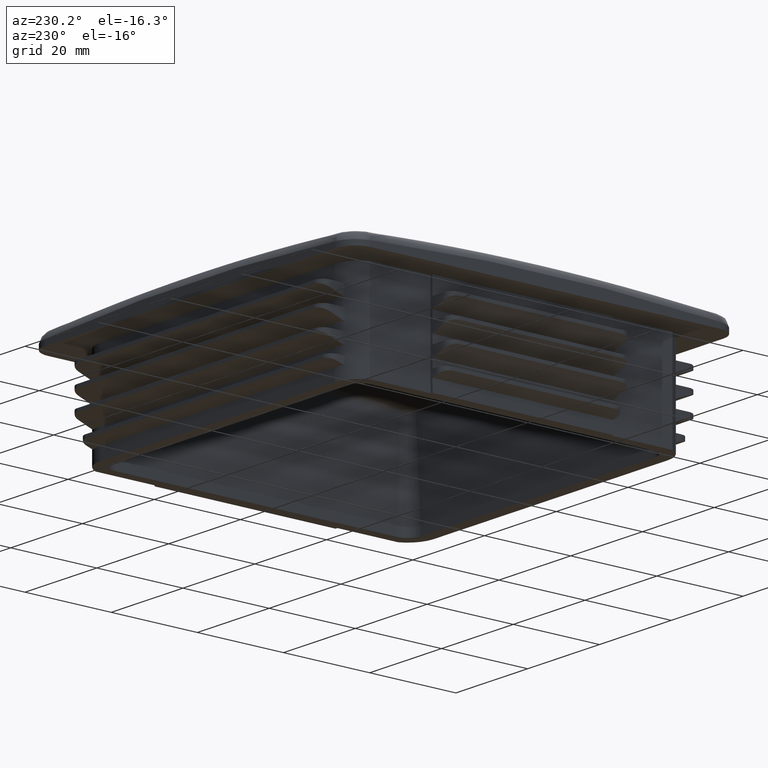
[diagram: clean part render]
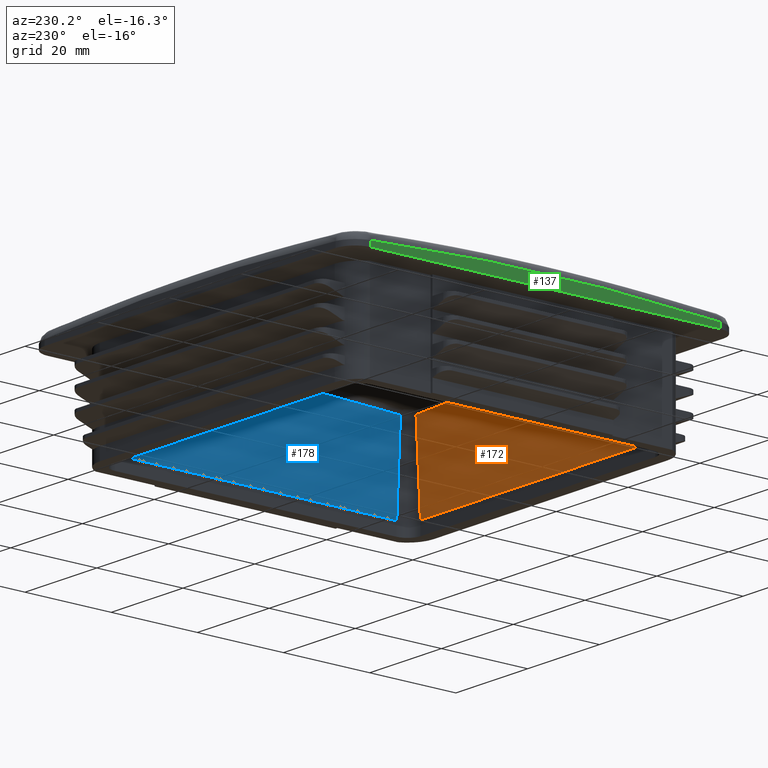
[diagram: same view with three faces highlighted in distinct colors, each labeled with its STEP entity id]
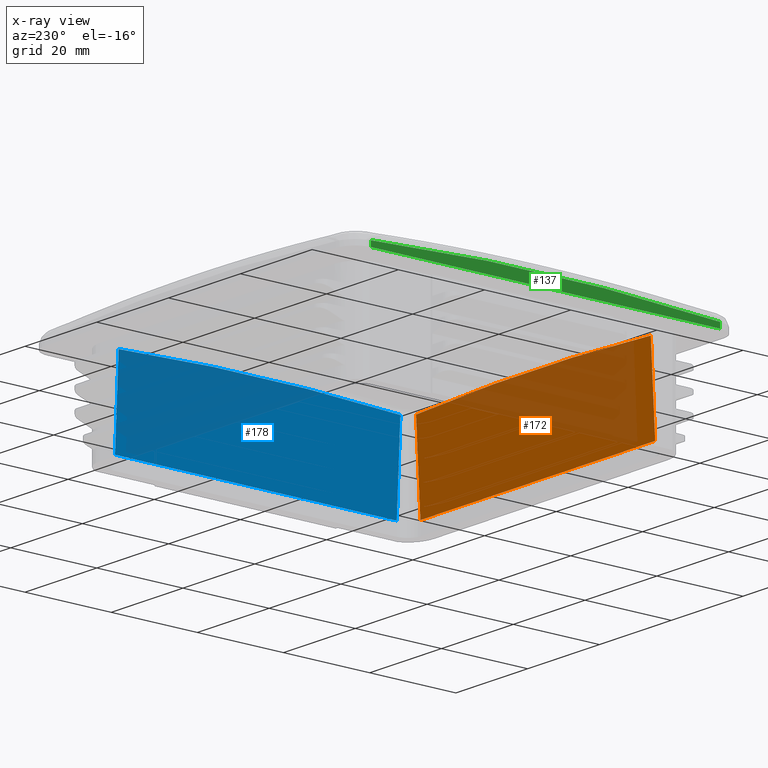
[diagram: x-ray of the same camera — body ghosted, the three highlighted faces saturated]
A machine part, auxiliary view with three faces highlighted in distinct colors.
The next image is the same camera in x-ray (body ghosted, the three faces saturated) — at least one of them is partly hidden behind the body in this view.
Their STEP definitions:

[orange] entity #172 — the highlighted planar face has unit normal (0, -0.9986, 0.0523).
#172 = ADVANCED_FACE( '', ( #528 ), #529, .F. );
#528 = FACE_OUTER_BOUND( '', #2197, .T. );
#529 = PLANE( '', #2198 );
#2197 = EDGE_LOOP( '', ( #4362, #4363, #4364, #4365 ) );
#2198 = AXIS2_PLACEMENT_3D( '', #4366, #4367, #4368 );
#4362 = ORIENTED_EDGE( '', *, *, #5860, .F. );
#4363 = ORIENTED_EDGE( '', *, *, #5861, .T. );
#4364 = ORIENTED_EDGE( '', *, *, #5621, .T. );
#4365 = ORIENTED_EDGE( '', *, *, #5839, .F. );
#4366 = CARTESIAN_POINT( '', ( -32.7000000000000, -35.7000000000000, 3.00000000000000 ) );
#4367 = DIRECTION( '', ( 0.000000000000000, -0.998629534754574, 0.0523359562429438 ) );
#4368 = DIRECTION( '', ( 0.000000000000000, -0.0523359562429438, -0.998629534754574 ) );
#5621 = EDGE_CURVE( '', #6359, #6360, #6361, .T. );
#5839 = EDGE_CURVE( '', #6476, #6360, #6726, .T. );
#5860 = EDGE_CURVE( '', #6758, #6476, #6759, .T. );
#5861 = EDGE_CURVE( '', #6758, #6359, #6760, .T. );
#6359 = VERTEX_POINT( '', #8445 );
#6360 = VERTEX_POINT( '', #8446 );
#6361 = LINE( '', #8447, #8448 );
#6476 = VERTEX_POINT( '', #8841 );
#6726 = LINE( '', #9568, #9569 );
#6758 = VERTEX_POINT( '', #9842 );
#6759 = LINE( '', #9843, #9844 );
#6760 = B_SPLINE_CURVE_WITH_KNOTS( '', 3, ( #9845, #9846, #9847, #9848, #9849, #9850, #9851, #9852, #9853, #9854, #9855, #9856, #9857, #9858, #9859, #9860, #9861, #9862, #9863, #9864, #9865, #9866 ), .UNSPECIFIED., .F., .F., ( 4, 2, 2, 2, 1, 1, 1, 1, 2, 2, 2, 2, 4 ), ( 0.000000000000000, 0.00817599120536314, 0.0163519824107263, 0.0245279736160894, 0.0286159692187710, 0.0327039648214525, 0.0367919604241341, 0.0408799560268157, 0.0449679516294972, 0.0470119494308380, 0.0490559472321788, 0.0572319384375419, 0.0654079296429051 ), .UNSPECIFIED. );
#8445 = CARTESIAN_POINT( '', ( 32.7000000000000, -34.6834295270022, 22.3973201479794 ) );
#8446 = CARTESIAN_POINT( '', ( 32.7000000000000, -35.7000000000000, 3.00000000000000 ) );
#8447 = CARTESIAN_POINT( '', ( 32.7000000000000, -35.7000000000000, 3.00000000000000 ) );
#8448 = VECTOR( '', #10877, 1000.00000000000 );
#8841 = CARTESIAN_POINT( '', ( -32.7000000000000, -35.7000000000000, 3.00000000000000 ) );
#9568 = CARTESIAN_POINT( '', ( -32.7000000000000, -35.7000000000000, 3.00000000000000 ) );
#9569 = VECTOR( '', #11081, 1000.00000000000 );
#9842 = CARTESIAN_POINT( '', ( -32.7000000000000, -34.6834295270022, 22.3973201479793 ) );
#9843 = CARTESIAN_POINT( '', ( -32.7000000000000, -35.7000000000000, 3.00000000000000 ) );
#9844 = VECTOR( '', #11097, 1000.00000000000 );
#9845 = CARTESIAN_POINT( '', ( -32.7000000000000, -34.6834295270022, 22.3973201479793 ) );
#9846 = CARTESIAN_POINT( '', ( -29.9766251865750, -34.6756096356885, 22.5465325630189 ) );
#9847 = CARTESIAN_POINT( '', ( -27.2529521426312, -34.6688170618993, 22.6761425919538 ) );
#9848 = CARTESIAN_POINT( '', ( -21.8050230481192, -34.6572402028244, 22.8970422223753 ) );
#9849 = CARTESIAN_POINT( '', ( -19.0807670541839, -34.6524557224546, 22.9883355462917 ) );
#9850 = CARTESIAN_POINT( '', ( -13.6316885666729, -34.6448381884525, 23.1336867538093 ) );
#9851 = CARTESIAN_POINT( '', ( -10.9068662871930, -34.6420043973223, 23.1877587097081 ) );
#9852 = CARTESIAN_POINT( '', ( -6.81921983654308, -34.6391764839505, 23.2417185112981 ) );
#9853 = CARTESIAN_POINT( '', ( -4.09398446149002, -34.6377656870979, 23.2686381188800 ) );
#9854 = CARTESIAN_POINT( '', ( -0.00572181449726258, -34.6370603911701, 23.2820959668828 ) );
#9855 = CARTESIAN_POINT( '', ( 4.08294919173564, -34.6377617742284, 23.2687127808782 ) );
#9856 = CARTESIAN_POINT( '', ( 8.17203002624835, -34.6398748966876, 23.2283920023961 ) );
#9857 = CARTESIAN_POINT( '', ( 10.8983597348227, -34.6422337609975, 23.1833821900704 ) );
#9858 = CARTESIAN_POINT( '', ( 12.9432118407064, -34.6443639990273, 23.1427348270463 ) );
#9859 = CARTESIAN_POINT( '', ( 13.6248466836530, -34.6451342723236, 23.1280371369943 ) );
#9860 = CARTESIAN_POINT( '', ( 14.9881515807008, -34.6467961111174, 23.0963273638160 ) );
#9861 = CARTESIAN_POINT( '', ( 15.6697641668563, -34.6476876079677, 23.0793165905597 ) );
#9862 = CARTESIAN_POINT( '', ( 19.0775872097950, -34.6524501076498, 22.9884426831487 ) );
#9863 = CARTESIAN_POINT( '', ( 21.8031189466526, -34.6572364231464, 22.8971143429286 ) );
#9864 = CARTESIAN_POINT( '', ( 27.2526884228143, -34.6688162350592, 22.6761583690019 ) );
#9865 = CARTESIAN_POINT( '', ( 29.9767260179128, -34.6756099252154, 22.5465270385177 ) );
#9866 = CARTESIAN_POINT( '', ( 32.7000000000000, -34.6834295270022, 22.3973201479794 ) );
#10877 = DIRECTION( '', ( 0.000000000000000, -0.0523359562429438, -0.998629534754574 ) );
#11081 = DIRECTION( '', ( 1.00000000000000, 0.000000000000000, 0.000000000000000 ) );
#11097 = DIRECTION( '', ( 0.000000000000000, -0.0523359562429438, -0.998629534754574 ) );

[blue] entity #178 — the highlighted planar face has unit normal (0.9986, 0, 0.0523).
#178 = ADVANCED_FACE( '', ( #540 ), #541, .F. );
#540 = FACE_OUTER_BOUND( '', #2209, .T. );
#541 = PLANE( '', #2210 );
#2209 = EDGE_LOOP( '', ( #4404, #4405, #4406, #4407 ) );
#2210 = AXIS2_PLACEMENT_3D( '', #4408, #4409, #4410 );
#4404 = ORIENTED_EDGE( '', *, *, #5623, .F. );
#4405 = ORIENTED_EDGE( '', *, *, #5872, .T. );
#4406 = ORIENTED_EDGE( '', *, *, #5870, .T. );
#4407 = ORIENTED_EDGE( '', *, *, #5842, .F. );
#4408 = CARTESIAN_POINT( '', ( 35.7000000000000, -35.7000000000000, 3.00000000000000 ) );
#4409 = DIRECTION( '', ( 0.998629534754574, 0.000000000000000, 0.0523359562429438 ) );
#4410 = DIRECTION( '', ( 0.0523359562429438, 0.000000000000000, -0.998629534754574 ) );
#5623 = EDGE_CURVE( '', #6362, #6364, #6365, .T. );
#5842 = EDGE_CURVE( '', #6364, #6729, #6730, .T. );
#5870 = EDGE_CURVE( '', #6773, #6729, #6774, .T. );
#5872 = EDGE_CURVE( '', #6362, #6773, #6776, .T. );
#6362 = VERTEX_POINT( '', #8449 );
#6364 = VERTEX_POINT( '', #8493 );
#6365 = LINE( '', #8494, #8495 );
#6729 = VERTEX_POINT( '', #9574 );
#6730 = LINE( '', #9575, #9576 );
#6773 = VERTEX_POINT( '', #10009 );
#6774 = LINE( '', #10010, #10011 );
#6776 = B_SPLINE_CURVE_WITH_KNOTS( '', 3, ( #10055, #10056, #10057, #10058, #10059, #10060, #10061, #10062, #10063, #10064, #10065, #10066, #10067, #10068, #10069, #10070, #10071, #10072, #10073, #10074, #10075, #10076 ), .UNSPECIFIED., .F., .F., ( 4, 2, 2, 2, 1, 1, 1, 1, 2, 2, 2, 2, 4 ), ( 0.000000000000000, 0.00817599120536313, 0.0163519824107263, 0.0245279736160894, 0.0286159692187710, 0.0327039648214525, 0.0367919604241341, 0.0408799560268157, 0.0449679516294972, 0.0470119494308380, 0.0490559472321788, 0.0572319384375419, 0.0654079296429051 ), .UNSPECIFIED. );
#8449 = CARTESIAN_POINT( '', ( 34.6834295270022, -32.7000000000000, 22.3973201479793 ) );
#8493 = CARTESIAN_POINT( '', ( 35.7000000000000, -32.7000000000000, 3.00000000000000 ) );
#8494 = CARTESIAN_POINT( '', ( 35.7000000000000, -32.7000000000000, 3.00000000000000 ) );
#8495 = VECTOR( '', #10878, 1000.00000000000 );
#9574 = CARTESIAN_POINT( '', ( 35.7000000000000, 32.7000000000000, 3.00000000000000 ) );
#9575 = CARTESIAN_POINT( '', ( 35.7000000000000, -32.7000000000000, 3.00000000000000 ) );
#9576 = VECTOR( '', #11084, 1000.00000000000 );
#10009 = CARTESIAN_POINT( '', ( 34.6834295270022, 32.7000000000000, 22.3973201479794 ) );
#10010 = CARTESIAN_POINT( '', ( 35.7000000000000, 32.7000000000000, 3.00000000000000 ) );
#10011 = VECTOR( '', #11102, 1000.00000000000 );
#10055 = CARTESIAN_POINT( '', ( 34.6834295270022, -32.7000000000000, 22.3973201479793 ) );
#10056 = CARTESIAN_POINT( '', ( 34.6756096356885, -29.9766251865750, 22.5465325630189 ) );
#10057 = CARTESIAN_POINT( '', ( 34.6688170618993, -27.2529521426312, 22.6761425919538 ) );
#10058 = CARTESIAN_POINT( '', ( 34.6572402028244, -21.8050230481192, 22.8970422223753 ) );
#10059 = CARTESIAN_POINT( '', ( 34.6524557224546, -19.0807670541839, 22.9883355462917 ) );
#10060 = CARTESIAN_POINT( '', ( 34.6448381884525, -13.6316885666729, 23.1336867538093 ) );
#10061 = CARTESIAN_POINT( '', ( 34.6420043973223, -10.9068662871930, 23.1877587097081 ) );
#10062 = CARTESIAN_POINT( '', ( 34.6391764839505, -6.81921983654306, 23.2417185112981 ) );
#10063 = CARTESIAN_POINT( '', ( 34.6377656870979, -4.09398446148999, 23.2686381188800 ) );
#10064 = CARTESIAN_POINT( '', ( 34.6370603913523, -0.00572181444438952, 23.2820959634071 ) );
#10065 = CARTESIAN_POINT( '', ( 34.6377617742284, 4.08294919173564, 23.2687127808782 ) );
#10066 = CARTESIAN_POINT( '', ( 34.6398748966876, 8.17203002624836, 23.2283920023961 ) );
#10067 = CARTESIAN_POINT( '', ( 34.6422337609975, 10.8983597348227, 23.1833821900704 ) );
#10068 = CARTESIAN_POINT( '', ( 34.6443639990273, 12.9432118407064, 23.1427348270463 ) );
#10069 = CARTESIAN_POINT( '', ( 34.6451342723236, 13.6248466836530, 23.1280371369943 ) );
#10070 = CARTESIAN_POINT( '', ( 34.6467961111174, 14.9881515807008, 23.0963273638160 ) );
#10071 = CARTESIAN_POINT( '', ( 34.6476876079677, 15.6697641668563, 23.0793165905597 ) );
#10072 = CARTESIAN_POINT( '', ( 34.6524501076498, 19.0775872097950, 22.9884426831487 ) );
#10073 = CARTESIAN_POINT( '', ( 34.6572364231464, 21.8031189466526, 22.8971143429286 ) );
#10074 = CARTESIAN_POINT( '', ( 34.6688162350592, 27.2526884228143, 22.6761583690019 ) );
#10075 = CARTESIAN_POINT( '', ( 34.6756099252154, 29.9767260179128, 22.5465270385177 ) );
#10076 = CARTESIAN_POINT( '', ( 34.6834295270022, 32.7000000000000, 22.3973201479794 ) );
#10878 = DIRECTION( '', ( 0.0523359562429438, 0.000000000000000, -0.998629534754574 ) );
#11084 = DIRECTION( '', ( 0.000000000000000, 1.00000000000000, 0.000000000000000 ) );
#11102 = DIRECTION( '', ( 0.0523359562429438, 0.000000000000000, -0.998629534754574 ) );

[green] entity #137 — the highlighted planar face has unit normal (-1, 0, 0).
#137 = ADVANCED_FACE( '', ( #447 ), #448, .T. );
#447 = FACE_OUTER_BOUND( '', #2022, .T. );
#448 = PLANE( '', #2023 );
#2022 = EDGE_LOOP( '', ( #4022, #4023, #4024, #4025 ) );
#2023 = AXIS2_PLACEMENT_3D( '', #4026, #4027, #4028 );
#4022 = ORIENTED_EDGE( '', *, *, #5566, .T. );
#4023 = ORIENTED_EDGE( '', *, *, #5554, .T. );
#4024 = ORIENTED_EDGE( '', *, *, #5558, .F. );
#4025 = ORIENTED_EDGE( '', *, *, #5601, .T. );
#4026 = CARTESIAN_POINT( '', ( -45.0000000000000, 40.5000000000000, -141.159413251951 ) );
#4027 = DIRECTION( '', ( -1.00000000000000, 0.000000000000000, 0.000000000000000 ) );
#4028 = DIRECTION( '', ( 0.000000000000000, -1.00000000000000, 0.000000000000000 ) );
#5554 = EDGE_CURVE( '', #6239, #6234, #6243, .T. );
#5558 = EDGE_CURVE( '', #6249, #6234, #6250, .T. );
#5566 = EDGE_CURVE( '', #6263, #6239, #6264, .T. );
#5601 = EDGE_CURVE( '', #6249, #6263, #6322, .T. );
#6234 = VERTEX_POINT( '', #7314 );
#6239 = VERTEX_POINT( '', #7408 );
#6243 = B_SPLINE_CURVE_WITH_KNOTS( '', 3, ( #7437, #7438, #7439, #7440, #7441, #7442, #7443, #7444, #7445, #7446, #7447, #7448, #7449, #7450, #7451, #7452, #7453, #7454, #7455, #7456, #7457, #7458, #7459 ), .UNSPECIFIED., .F., .F., ( 4, 2, 2, 2, 2, 1, 1, 1, 1, 1, 2, 2, 2, 4 ), ( 0.000000000000000, 0.0101374403042641, 0.0202748806085281, 0.0215420606465611, 0.0228092406845942, 0.0253436007606602, 0.0304123209127923, 0.0354810410649243, 0.0405497612170564, 0.0456184813691884, 0.0506872015213205, 0.0608246418255846, 0.0709620821298487, 0.0810995224341129 ), .UNSPECIFIED. );
#6249 = VERTEX_POINT( '', #7554 );
#6250 = LINE( '', #7555, #7556 );
#6263 = VERTEX_POINT( '', #7679 );
#6264 = LINE( '', #7680, #7681 );
#6322 = LINE( '', #8028, #8029 );
#7314 = CARTESIAN_POINT( '', ( -45.0000000000000, 40.5000000000000, 23.2681844320706 ) );
#7408 = CARTESIAN_POINT( '', ( -45.0000000000000, -40.4999999999999, 23.2681844320705 ) );
#7437 = CARTESIAN_POINT( '', ( -45.0000000000000, -40.4999999999999, 23.2681844320706 ) );
#7438 = CARTESIAN_POINT( '', ( -45.0000000000000, -37.1282487114366, 23.5005855604364 ) );
#7439 = CARTESIAN_POINT( '', ( -45.0000000000000, -33.7549921762107, 23.7028507398764 ) );
#7440 = CARTESIAN_POINT( '', ( -45.0000000000000, -27.0055197303321, 24.0481326121509 ) );
#7441 = CARTESIAN_POINT( '', ( -45.0000000000000, -23.6293040578510, 24.1911540733277 ) );
#7442 = CARTESIAN_POINT( '', ( -45.0000000000000, -19.8294307898601, 24.3194068888185 ) );
#7443 = CARTESIAN_POINT( '', ( -45.0000000000000, -19.4072000029825, 24.3332038152352 ) );
#7444 = CARTESIAN_POINT( '', ( -45.0000000000000, -18.5626932544056, 24.3598932408044 ) );
#7445 = CARTESIAN_POINT( '', ( -45.0000000000000, -18.1404309209844, 24.3727852922747 ) );
#7446 = CARTESIAN_POINT( '', ( -45.0000000000000, -16.8736911074015, 24.4101051624273 ) );
#7447 = CARTESIAN_POINT( '', ( -45.0000000000000, -14.3403106961436, 24.4793221594321 ) );
#7448 = CARTESIAN_POINT( '', ( -45.0000000000000, -10.1185031190928, 24.5677324963020 ) );
#7449 = CARTESIAN_POINT( '', ( -45.0000000000000, -5.05311493493404, 24.6311435870747 ) );
#7450 = CARTESIAN_POINT( '', ( -45.0000000000000, 0.0114978931628731, 24.6521768275565 ) );
#7451 = CARTESIAN_POINT( '', ( -45.0000000000000, 5.07533758930748, 24.6309537786436 ) );
#7452 = CARTESIAN_POINT( '', ( -45.0000000000000, 8.45071427841528, 24.5885784513347 ) );
#7453 = CARTESIAN_POINT( '', ( -45.0000000000000, 13.5133895718390, 24.5037138232638 ) );
#7454 = CARTESIAN_POINT( '', ( -45.0000000000000, 16.8879869722624, 24.4187457042939 ) );
#7455 = CARTESIAN_POINT( '', ( -45.0000000000000, 23.6361215913810, 24.1908641883489 ) );
#7456 = CARTESIAN_POINT( '', ( -45.0000000000000, 27.0096585199261, 24.0479349329291 ) );
#7457 = CARTESIAN_POINT( '', ( -45.0000000000000, 33.7556478977275, 23.7028031369373 ) );
#7458 = CARTESIAN_POINT( '', ( -45.0000000000000, 37.1281002590938, 23.5005957926537 ) );
#7459 = CARTESIAN_POINT( '', ( -45.0000000000000, 40.4999999999999, 23.2681844320706 ) );
#7554 = CARTESIAN_POINT( '', ( -45.0000000000000, 40.5000000000000, 22.0000000000000 ) );
#7555 = CARTESIAN_POINT( '', ( -45.0000000000000, 40.5000000000000, -141.159413251951 ) );
#7556 = VECTOR( '', #10816, 1000.00000000000 );
#7679 = CARTESIAN_POINT( '', ( -45.0000000000000, -40.4999999999999, 21.9999999999999 ) );
#7680 = CARTESIAN_POINT( '', ( -45.0000000000000, -40.4999999999999, -141.159413251951 ) );
#7681 = VECTOR( '', #10825, 1000.00000000000 );
#8028 = CARTESIAN_POINT( '', ( -45.0000000000000, 5.29005319622759E-032, 22.0000000000000 ) );
#8029 = VECTOR( '', #10870, 1000.00000000000 );
#10816 = DIRECTION( '', ( 0.000000000000000, 0.000000000000000, 1.00000000000000 ) );
#10825 = DIRECTION( '', ( 0.000000000000000, 0.000000000000000, 1.00000000000000 ) );
#10870 = DIRECTION( '', ( 0.000000000000000, -1.00000000000000, 6.12303176911189E-017 ) );